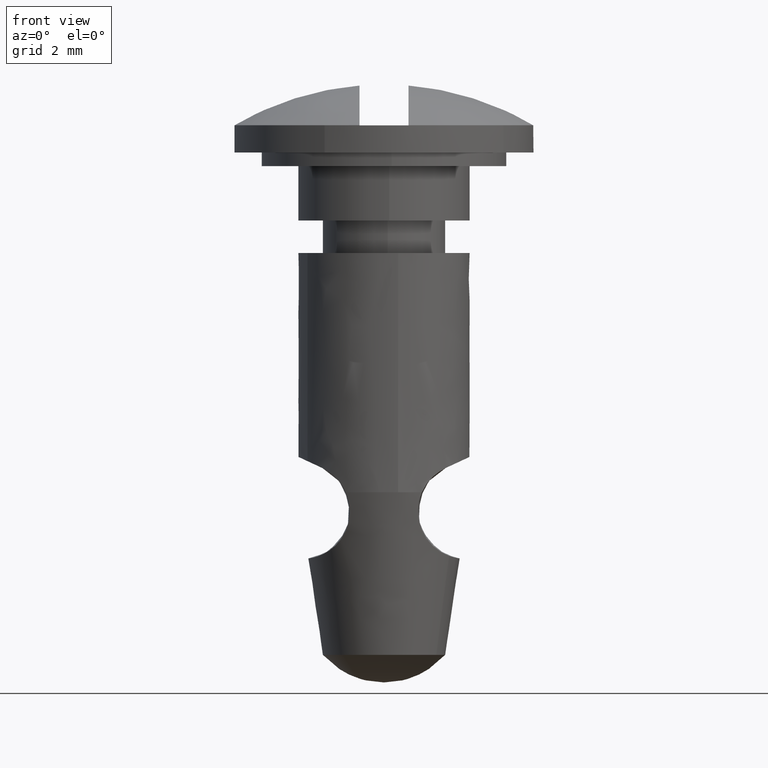
[diagram: clean part render]
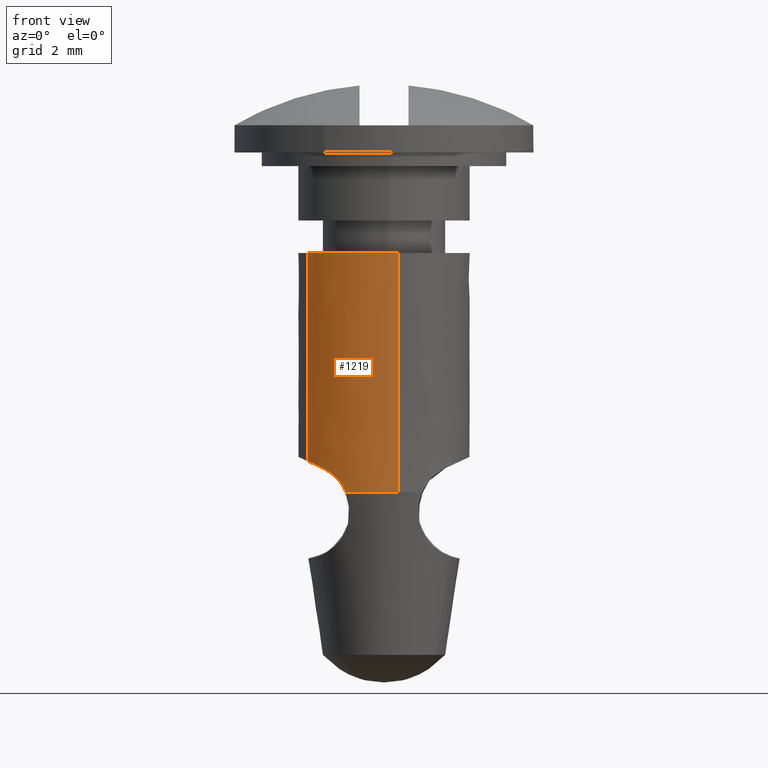
[diagram: same view with one face highlighted and labeled with its STEP entity id]
A machine part, front view. The second image highlights one B-rep face of the part: STEP entity #1219.
In plain terms, the highlighted face is a freeform B-spline surface patch.
Its self-contained STEP definition (entity closure, byte-faithful):
#144=CARTESIAN_POINT('',(0.519899958460847,-3.106799644842327,7.000000000000001));
#145=VERTEX_POINT('',#144);
#159=CARTESIAN_POINT('',(-1.395411921601278,-2.824061891859485,7.0));
#160=VERTEX_POINT('',#159);
#161=CARTESIAN_POINT('',(0.519899958460847,-3.106799644842327,7.000000000000001));
#162=CARTESIAN_POINT('',(-0.483409633563327,-3.274696089687876,7.000000000000001));
#163=CARTESIAN_POINT('',(-1.395411921601282,-2.824061891859493,7.0));
#171=(BOUNDED_CURVE()B_SPLINE_CURVE(2,(#161,#162,#163),.UNSPECIFIED.,.F.,.U.)B_SPLINE_CURVE_WITH_KNOTS((3,3),(0.322129130754565,1.0),.UNSPECIFIED.)CURVE()GEOMETRIC_REPRESENTATION_ITEM()RATIONAL_B_SPLINE_CURVE((0.954811122453641,0.929859063909391,1.0))REPRESENTATION_ITEM(''));
#172=EDGE_CURVE('',#145,#160,#171,.T.);
#1001=CARTESIAN_POINT('',(-2.816922847399866,-1.409767949627387,15.800000000000001));
#1002=VERTEX_POINT('',#1001);
#1035=CARTESIAN_POINT('',(0.519895864489646,-3.106800329932603,15.800000000000001));
#1036=VERTEX_POINT('',#1035);
#1050=CARTESIAN_POINT('',(0.519895864489646,-3.106800329932603,15.800000000000001));
#1051=CARTESIAN_POINT('',(0.519899958460847,-3.106799644842327,7.000000000000001));
#1052=QUASI_UNIFORM_CURVE('',1,(#1050,#1051),.UNSPECIFIED.,.F.,.U.);
#1053=EDGE_CURVE('',#1036,#145,#1052,.T.);
#1128=CARTESIAN_POINT('',(-2.816922779318737,-1.409768085663437,8.145074564112427));
#1129=VERTEX_POINT('',#1128);
#1143=CARTESIAN_POINT('',(-2.816922847399866,-1.409767949627387,15.800000000000001));
#1144=CARTESIAN_POINT('',(-2.816922779318737,-1.409768085663437,8.145074564112427));
#1145=QUASI_UNIFORM_CURVE('',1,(#1143,#1144),.UNSPECIFIED.,.F.,.U.);
#1146=EDGE_CURVE('',#1002,#1129,#1145,.T.);
#1151=CARTESIAN_POINT('',(0.519899958461135,-3.106799644842278,16.020000000000000));
#1152=CARTESIAN_POINT('',(-1.775391580412365,-3.490899719559875,16.019999999999996));
#1153=CARTESIAN_POINT('',(-2.816922779311295,-1.409768085678324,16.020000000000003));
#1154=CARTESIAN_POINT('',(0.519899958461135,-3.106799644842278,6.774500000000000));
#1155=CARTESIAN_POINT('',(-1.775391580412365,-3.490899719559875,6.774500000000000));
#1156=CARTESIAN_POINT('',(-2.816922779311295,-1.409768085678324,6.774500000000000));
#1164=(BOUNDED_SURFACE()B_SPLINE_SURFACE(2,1,((#1151,#1154),(#1152,#1155),(#1153,#1156)),.UNSPECIFIED.,.F.,.F.,.U.)B_SPLINE_SURFACE_WITH_KNOTS((3,3),(2,2),(0.0,4.146813480242935),(0.0,9.245500000000003),.UNSPECIFIED.)GEOMETRIC_REPRESENTATION_ITEM()RATIONAL_B_SPLINE_SURFACE(((1.0,1.0),(0.765685424949238,0.765685424949238),(0.906274169979695,0.906274169979695)))REPRESENTATION_ITEM('')SURFACE());
#1165=CARTESIAN_POINT('',(0.519895864489646,-3.106800329932603,15.799999999999997));
#1166=CARTESIAN_POINT('',(0.261742725800032,-3.150000000000000,15.800000000000002));
#1167=CARTESIAN_POINT('',(0.0,-3.150000000000000,15.800000000000001));
#1168=CARTESIAN_POINT('',(-1.945999784762892,-3.149999999999999,15.800000000000002));
#1169=CARTESIAN_POINT('',(-2.816922847399866,-1.409767949627387,15.800000000000001));
#1177=(BOUNDED_CURVE()B_SPLINE_CURVE(2,(#1165,#1166,#1167,#1168,#1169),.UNSPECIFIED.,.F.,.U.)B_SPLINE_CURVE_WITH_KNOTS((3,2,3),(0.721599700964532,0.750000000000000,0.923914174302995),.UNSPECIFIED.)CURVE()GEOMETRIC_REPRESENTATION_ITEM()RATIONAL_B_SPLINE_CURVE((0.941013669744188,0.966726980000949,1.0,0.796246870764449,0.875978199390115))REPRESENTATION_ITEM(''));
#1178=EDGE_CURVE('',#1036,#1002,#1177,.T.);
#1179=ORIENTED_EDGE('',*,*,#1178,.T.);
#1180=ORIENTED_EDGE('',*,*,#1146,.T.);
#1181=CARTESIAN_POINT('',(-2.261600000000000,-2.192638921482485,7.886915730406150));
#1182=VERTEX_POINT('',#1181);
#1183=CARTESIAN_POINT('',(-2.261600000000000,-2.192638921482485,7.886915730406150));
#1184=CARTESIAN_POINT('',(-2.599602434907024,-1.844005911598272,8.044046533666625));
#1185=CARTESIAN_POINT('',(-2.816922779318738,-1.409768085663437,8.145074564112427));
#1193=(BOUNDED_CURVE()B_SPLINE_CURVE(2,(#1183,#1184,#1185),.UNSPECIFIED.,.F.,.U.)B_SPLINE_CURVE_WITH_KNOTS((3,3),(0.0,0.208441417067243),.UNSPECIFIED.)CURVE()GEOMETRIC_REPRESENTATION_ITEM()RATIONAL_B_SPLINE_CURVE((1.0,0.941212903199195,0.906933137923249))REPRESENTATION_ITEM(''));
#1194=EDGE_CURVE('',#1182,#1129,#1193,.T.);
#1195=ORIENTED_EDGE('',*,*,#1194,.F.);
#1196=CARTESIAN_POINT('',(-2.261600000000000,-2.192638921482485,7.886915730406150));
#1197=CARTESIAN_POINT('',(-2.181831699541439,-2.274916029012395,7.849832988297429));
#1198=CARTESIAN_POINT('',(-2.100620835552379,-2.349692505881192,7.804807713554040));
#1199=CARTESIAN_POINT('',(-1.978996496555930,-2.451298341360575,7.722625274942812));
#1200=CARTESIAN_POINT('',(-1.938489436503444,-2.483405336447940,7.692784194518151));
#1201=CARTESIAN_POINT('',(-1.878120328080017,-2.528991868983766,7.643915530393711));
#1202=CARTESIAN_POINT('',(-1.858005387198167,-2.543798378913870,7.626886614135263));
#1203=CARTESIAN_POINT('',(-1.818414570195090,-2.572248561536084,7.591777452061766));
#1204=CARTESIAN_POINT('',(-1.798905511084345,-2.585919627660836,7.573674999972974));
#1205=CARTESIAN_POINT('',(-1.702917029167679,-2.651647662920122,7.480394052841118));
#1206=CARTESIAN_POINT('',(-1.631078453565134,-2.695870092696961,7.396960711740160));
#1207=CARTESIAN_POINT('',(-1.533400029147609,-2.751834382771917,7.257508453463905));
#1208=CARTESIAN_POINT('',(-1.502396359411316,-2.768817252796402,7.208370620207613));
#1209=CARTESIAN_POINT('',(-1.445289667039969,-2.799050120755768,7.106787800228742));
#1210=CARTESIAN_POINT('',(-1.419096626505066,-2.812358919032429,7.054268918269485));
#1211=CARTESIAN_POINT('',(-1.395411921601278,-2.824061891859485,7.0));
#1212=B_SPLINE_CURVE_WITH_KNOTS('',3,(#1196,#1197,#1198,#1199,#1200,#1201,#1202,#1203,#1204,#1205,#1206,#1207,#1208,#1209,#1210,#1211),.UNSPECIFIED.,.F.,.U.,(4,2,2,2,2,2,2,4),(0.0,0.250000000000000,0.375000000000000,0.437500000000001,0.500000000000001,0.750000000000001,0.875000000000001,1.0),.UNSPECIFIED.);
#1213=EDGE_CURVE('',#1182,#160,#1212,.T.);
#1214=ORIENTED_EDGE('',*,*,#1213,.T.);
#1215=ORIENTED_EDGE('',*,*,#172,.F.);
#1216=ORIENTED_EDGE('',*,*,#1053,.F.);
#1217=EDGE_LOOP('',(#1179,#1180,#1195,#1214,#1215,#1216));
#1218=FACE_OUTER_BOUND('',#1217,.T.);
#1219=ADVANCED_FACE('',(#1218),#1164,.T.);